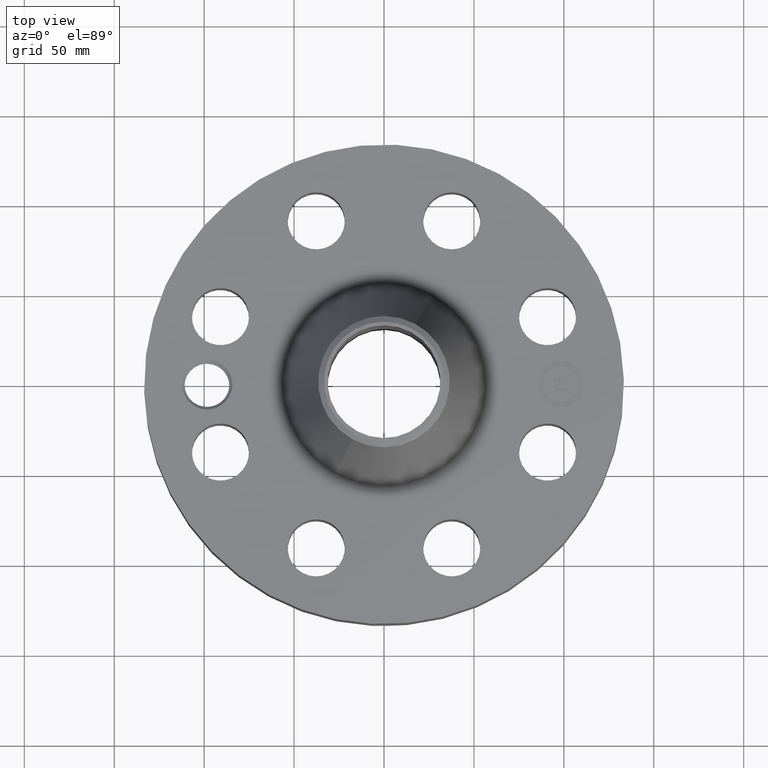
[diagram: clean part render]
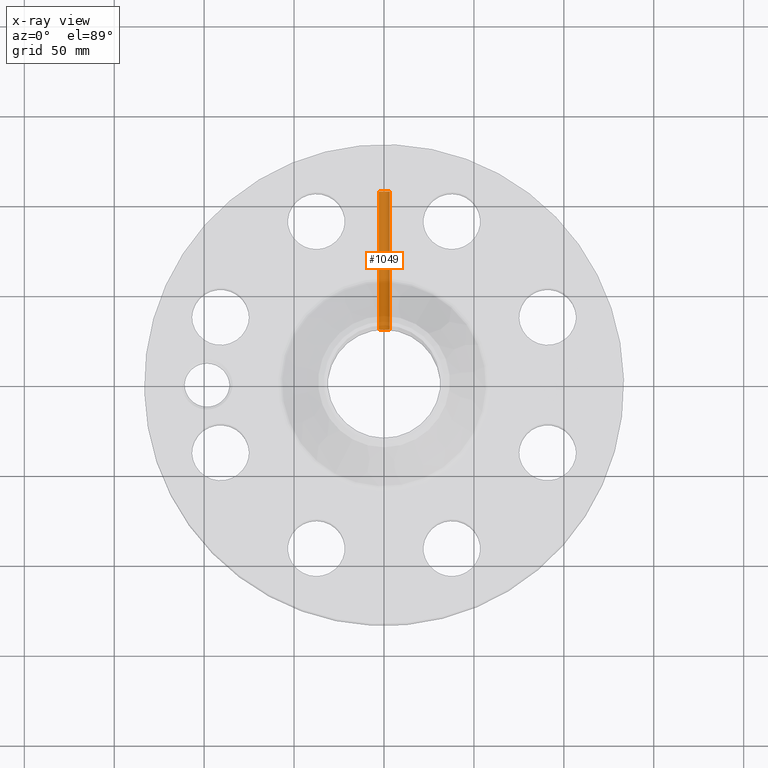
[diagram: x-ray — body ghosted, one internal face saturated and labeled with its STEP entity id]
A machine part, top view, then the same camera in x-ray: the body is ghosted and one INTERNAL B-rep face — a face not visible from any outside direction — is saturated and labeled: STEP entity #1049.
In plain terms, the highlighted cylindrical surface (edge-blend (fillet) strip) has radius 3.175 mm, axis along (-0, -1, 0).
Its self-contained STEP definition (entity closure, byte-faithful):
#1010=AXIS2_PLACEMENT_3D('Cylinder Axis2P3D',#1007,#1008,#1009) ;
#1040=AXIS2_PLACEMENT_3D('Circle Axis2P3D',#1038,#1039,$) ;
#553=CARTESIAN_POINT('Control Point',(-0.109697820237,1.22961645981,0.690071807677)) ;
#554=CARTESIAN_POINT('Control Point',(-0.103060754706,1.2302085726,0.677922740715)) ;
#555=CARTESIAN_POINT('Control Point',(-0.0947439558115,1.23090540221,0.666696444244)) ;
#556=CARTESIAN_POINT('Control Point',(-0.0849163370628,1.23164628474,0.656698846508)) ;
#557=CARTESIAN_POINT('Control Point',(-0.0516790100596,1.23375368765,0.631181117232)) ;
#558=CARTESIAN_POINT('Control Point',(-0.00988471502774,1.23496616819,0.62062891742)) ;
#559=CARTESIAN_POINT('Control Point',(0.0193498984432,1.23483636274,0.621705716324)) ;
#560=CARTESIAN_POINT('Control Point',(0.0602724641082,1.23333252326,0.635297419786)) ;
#561=CARTESIAN_POINT('Control Point',(0.091561492761,1.23116135472,0.663204688425)) ;
#562=CARTESIAN_POINT('Control Point',(0.100642715649,1.23042853514,0.673920318422)) ;
#563=CARTESIAN_POINT('Control Point',(0.120590039959,1.22867082139,0.705490628507)) ;
#564=CARTESIAN_POINT('Control Point',(0.128081277395,1.22782736432,0.742745795757)) ;
#565=CARTESIAN_POINT('Control Point',(0.127185080438,1.22793040361,0.766762148479)) ;
#566=CARTESIAN_POINT('Control Point',(0.120785294941,1.22862731251,0.789632706018)) ;
#567=CARTESIAN_POINT('Control Point',(0.109697820237,1.22961645981,0.809928192329)) ;
#568=CARTESIAN_POINT('Vertex',(-0.109697820237,1.22961645981,0.690071807677)) ;
#570=CARTESIAN_POINT('Vertex',(0.109697820237,1.22961645981,0.809928192329)) ;
#1007=CARTESIAN_POINT('Axis2P3D Location',(-7.13412469767E-015,5.24606299215,0.750000000003)) ;
#1012=CARTESIAN_POINT('Line Origine',(-0.109697820237,2.74050435273,0.690071807677)) ;
#1016=CARTESIAN_POINT('Vertex',(-0.109697820237,4.25321662099,0.690071807677)) ;
#1023=CARTESIAN_POINT('Vertex',(0.109697820237,4.25321662099,0.809928192329)) ;
#1026=CARTESIAN_POINT('Line Origine',(0.109697820237,2.74050435273,0.809928192329)) ;
#1038=CARTESIAN_POINT('Axis2P3D Location',(-7.31650761724E-015,4.25321662099,0.750000000003)) ;
#1008=DIRECTION('Axis2P3D Direction',(-7.2321661367E-018,-0.0393700787402,0.)) ;
#1009=DIRECTION('Axis2P3D XDirection',(-0.0345504945627,6.34682288627E-018,-0.0188750212048)) ;
#1013=DIRECTION('Vector Direction',(-7.28058776431E-018,-0.0393700787402,0.)) ;
#1027=DIRECTION('Vector Direction',(-7.28058776431E-018,-0.0393700787402,0.)) ;
#1039=DIRECTION('Axis2P3D Direction',(-7.2321661367E-018,-0.0393700787402,0.)) ;
#1014=VECTOR('Line Direction',#1013,0.0393700787402) ;
#1028=VECTOR('Line Direction',#1027,0.0393700787402) ;
#1044=ORIENTED_EDGE('',*,*,#572,.T.) ;
#1045=ORIENTED_EDGE('',*,*,#1030,.T.) ;
#1046=ORIENTED_EDGE('',*,*,#1042,.F.) ;
#1047=ORIENTED_EDGE('',*,*,#1018,.F.) ;
#1049=ADVANCED_FACE('PartBody',(#1048),#1011,.F.) ;
#552=B_SPLINE_CURVE_WITH_KNOTS('',5,(#553,#554,#555,#556,#557,#558,#559,#560,#561,#562,#563,#564,#565,#566,#567),.UNSPECIFIED.,.F.,.U.,(6,3,3,3,6),(0.,2.48868847732,7.4642827675,9.9575608689,14.1150112378),.UNSPECIFIED.) ;
#1041=CIRCLE('generated circle',#1040,0.125000000001) ;
#1011=CYLINDRICAL_SURFACE('generated cylinder',#1010,0.125000000001) ;
#572=EDGE_CURVE('',#569,#571,#552,.T.) ;
#1018=EDGE_CURVE('',#569,#1017,#1015,.F.) ;
#1030=EDGE_CURVE('',#571,#1024,#1029,.F.) ;
#1042=EDGE_CURVE('',#1017,#1024,#1041,.T.) ;
#1043=EDGE_LOOP('',(#1044,#1045,#1046,#1047)) ;
#1048=FACE_OUTER_BOUND('',#1043,.T.) ;
#1015=LINE('Line',#1012,#1014) ;
#1029=LINE('Line',#1026,#1028) ;
#569=VERTEX_POINT('',#568) ;
#571=VERTEX_POINT('',#570) ;
#1017=VERTEX_POINT('',#1016) ;
#1024=VERTEX_POINT('',#1023) ;